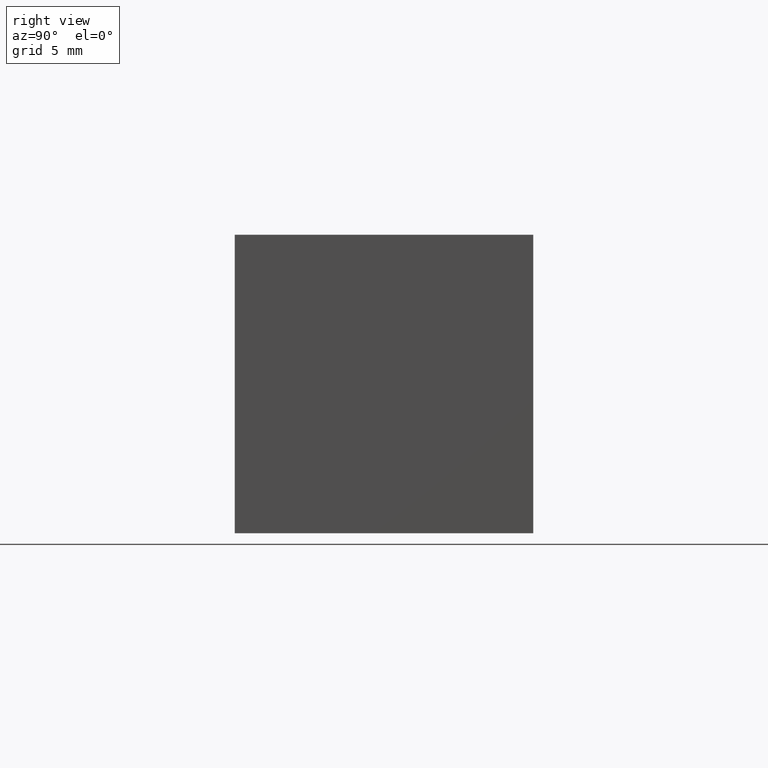
[diagram: clean part render]
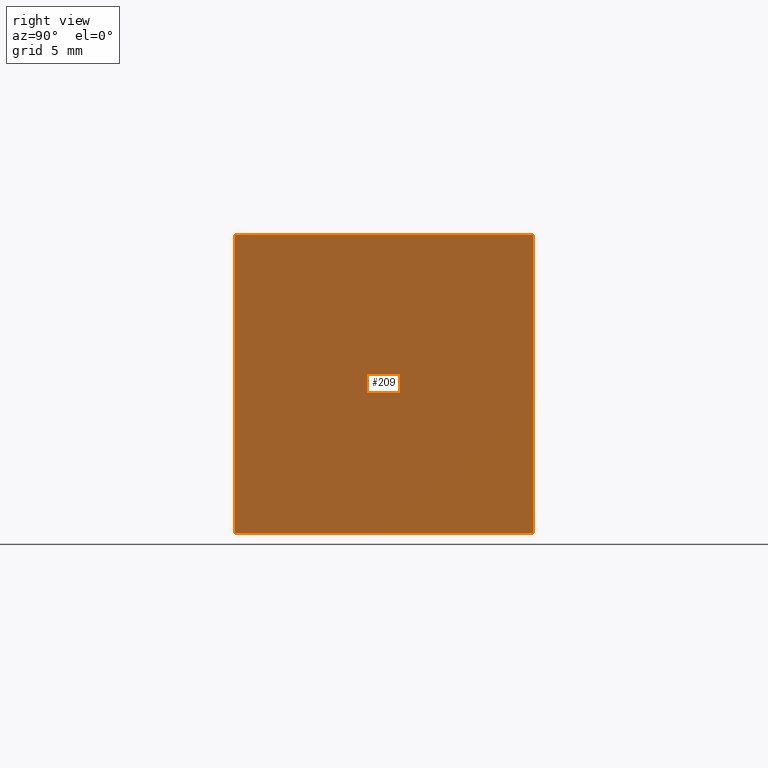
[diagram: same view with one face highlighted and labeled with its STEP entity id]
A machine part, right view. The second image highlights one B-rep face of the part: STEP entity #209.
In plain terms, the highlighted planar face has unit normal (1, 0, 0).
Its self-contained STEP definition (entity closure, byte-faithful):
#23=FACE_OUTER_BOUND('',#34,.T.);
#34=EDGE_LOOP('',(#173,#174,#175,#176));
#37=LINE('',#301,#64);
#60=LINE('',#346,#87);
#61=LINE('',#349,#88);
#62=LINE('',#350,#89);
#64=VECTOR('',#250,10.);
#87=VECTOR('',#287,10.);
#88=VECTOR('',#290,10.);
#89=VECTOR('',#291,10.);
#91=VERTEX_POINT('',#299);
#92=VERTEX_POINT('',#300);
#107=VERTEX_POINT('',#344);
#108=VERTEX_POINT('',#348);
#109=EDGE_CURVE('',#91,#92,#37,.T.);
#132=EDGE_CURVE('',#107,#92,#60,.T.);
#133=EDGE_CURVE('',#107,#108,#61,.T.);
#134=EDGE_CURVE('',#91,#108,#62,.T.);
#173=ORIENTED_EDGE('',*,*,#133,.T.);
#174=ORIENTED_EDGE('',*,*,#134,.F.);
#175=ORIENTED_EDGE('',*,*,#109,.T.);
#176=ORIENTED_EDGE('',*,*,#132,.F.);
#198=PLANE('',#243);
#209=ADVANCED_FACE('',(#23),#198,.T.);
#243=AXIS2_PLACEMENT_3D('',#347,#288,#289);
#250=DIRECTION('',(-3.085971153719E-16,1.,0.));
#287=DIRECTION('',(0.,0.,-1.));
#288=DIRECTION('center_axis',(1.,3.085971153719E-16,0.));
#289=DIRECTION('ref_axis',(0.,0.,-1.));
#290=DIRECTION('',(3.085971153719E-16,-1.,0.));
#291=DIRECTION('',(0.,0.,1.));
#299=CARTESIAN_POINT('',(3.67394050203139E-15,0.,-10.));
#300=CARTESIAN_POINT('',(-2.4980018054066E-15,20.,-10.));
#301=CARTESIAN_POINT('',(-2.4980018054066E-15,20.,-10.));
#344=CARTESIAN_POINT('',(-2.4980018054066E-15,20.,10.));
#346=CARTESIAN_POINT('',(-2.4980018054066E-15,20.,0.));
#347=CARTESIAN_POINT('Origin',(-2.4980018054066E-15,20.,0.));
#348=CARTESIAN_POINT('',(3.67394050203139E-15,0.,10.));
#349=CARTESIAN_POINT('',(-2.4980018054066E-15,20.,10.));
#350=CARTESIAN_POINT('',(3.67394050203139E-15,0.,0.));